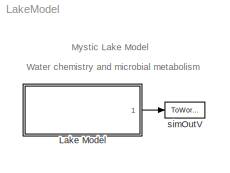
MODEL LakeModel
KIND model
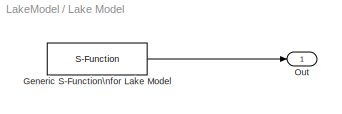
BLOCK [SubSystem] Lake Model
  Ports = [0, 1]
  Priority = 1
  RequestExecContextInheritance = off
  SID = 1
BLOCK [S-Function] Lake Model/Generic S-Function\nfor Lake Model
  EnableBusSupport = off
  FunctionName = SFunction_Lake
  Parameters = idR;Conn
  Ports = [1, 1]
  SID = 2
BLOCK [Outport] Lake Model/Out
  IconDisplay = Port number
  SID = 3
BLOCK [ToWorkspace] simOutV
  MaxDataPoints = inf
  Ports = [1]
  SID = 5
  SampleTime = -1
  VariableName = allOut
ANNOTATION (root): Mystic Lake Model
ANNOTATION (root): Water chemistry and microbial metabolism
LINE Lake Model/Generic S-Function\nfor Lake Model:1 -> Lake Model/Out:1
LINE Lake Model:1 -> simOutV:1
